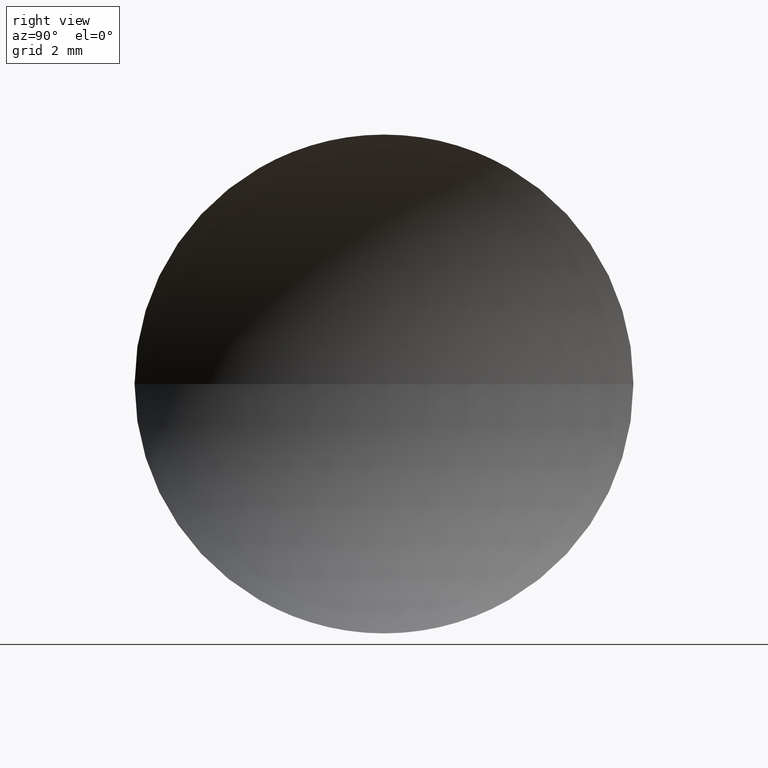
[diagram: clean part render]
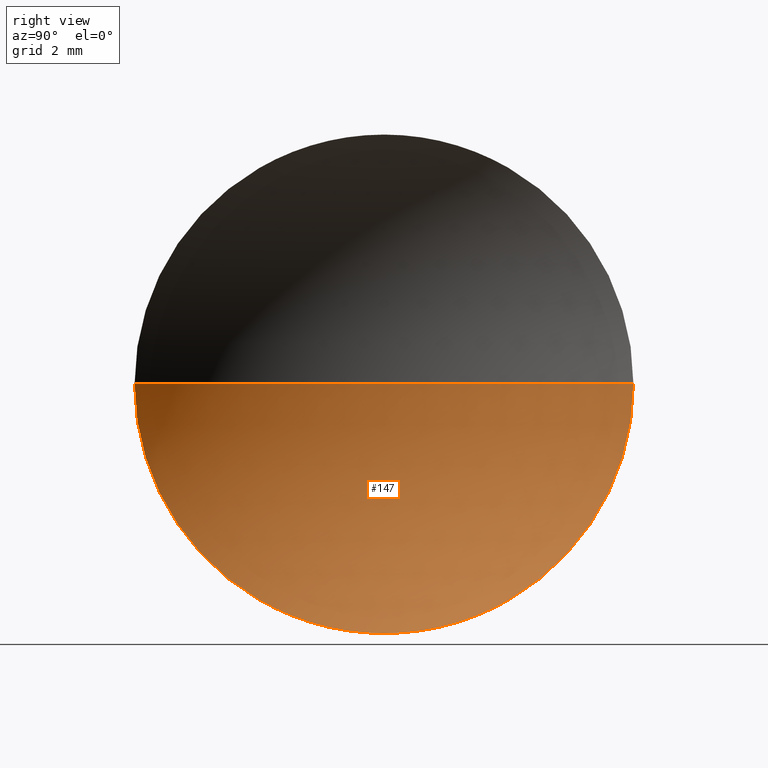
[diagram: same view with one face highlighted and labeled with its STEP entity id]
A machine part, right view. The second image highlights one B-rep face of the part: STEP entity #147.
In plain terms, the highlighted spherical surface has radius 6.46 mm.
Its self-contained STEP definition (entity closure, byte-faithful):
#2 = EDGE_LOOP ( 'NONE', ( #71, #49, #50 ) ) ;
#3 = DIRECTION ( 'NONE',  ( -3.868869157118576300E-032, -1.224646799147353200E-016, 1.000000000000000000 ) ) ;
#5 = DIRECTION ( 'NONE',  ( 0.0000000000000000000, -0.0000000000000000000, -1.000000000000000000 ) ) ;
#8 = CIRCLE ( 'NONE', #165, 6.460000000000000900 ) ;
#9 = CIRCLE ( 'NONE', #74, 5.000000000000002700 ) ;
#10 = EDGE_CURVE ( 'NONE', #105, #77, #127, .T. ) ;
#11 = EDGE_CURVE ( 'NONE', #105, #104, #9, .T. ) ;
#16 = EDGE_CURVE ( 'NONE', #104, #77, #8, .T. ) ;
#27 = DIRECTION ( 'NONE',  ( -1.000000000000000000, 0.0000000000000000000, 0.0000000000000000000 ) ) ;
#36 = CARTESIAN_POINT ( 'NONE',  ( 26.29380420313851700, 18.03112609140304600, 6.123233995736769200E-016 ) ) ;
#48 = SPHERICAL_SURFACE ( 'NONE', #55, 6.460000000000000900 ) ;
#49 = ORIENTED_EDGE ( 'NONE', *, *, #10, .T. ) ;
#50 = ORIENTED_EDGE ( 'NONE', *, *, #16, .F. ) ;
#55 = AXIS2_PLACEMENT_3D ( 'NONE', #155, #111, #100 ) ;
#65 = DIRECTION ( 'NONE',  ( 0.0000000000000000000, -1.000000000000000000, -1.224646799147353200E-016 ) ) ;
#71 = ORIENTED_EDGE ( 'NONE', *, *, #11, .F. ) ;
#74 = AXIS2_PLACEMENT_3D ( 'NONE', #122, #95, #146 ) ;
#77 = VERTEX_POINT ( 'NONE', #137 ) ;
#85 = CARTESIAN_POINT ( 'NONE',  ( 30.38423205362066100, 13.03112609140304000, 0.0000000000000000000 ) ) ;
#86 = FACE_OUTER_BOUND ( 'NONE', #2, .T. ) ;
#95 = DIRECTION ( 'NONE',  ( -1.000000000000000000, 3.159171411554934600E-016, -0.0000000000000000000 ) ) ;
#100 = DIRECTION ( 'NONE',  ( -5.370660916336863500E-016, -1.000000000000000000, 0.0000000000000000000 ) ) ;
#104 = VERTEX_POINT ( 'NONE', #120 ) ;
#105 = VERTEX_POINT ( 'NONE', #36 ) ;
#111 = DIRECTION ( 'NONE',  ( 0.0000000000000000000, 0.0000000000000000000, 1.000000000000000000 ) ) ;
#120 = CARTESIAN_POINT ( 'NONE',  ( 26.29380420313851700, 8.031126091403036700, 0.0000000000000000000 ) ) ;
#122 = CARTESIAN_POINT ( 'NONE',  ( 26.29380420313851700, 13.03112609140304000, 0.0000000000000000000 ) ) ;
#126 = CARTESIAN_POINT ( 'NONE',  ( 30.38423205362066100, 13.03112609140304000, 0.0000000000000000000 ) ) ;
#127 = CIRCLE ( 'NONE', #157, 6.460000000000000900 ) ;
#137 = CARTESIAN_POINT ( 'NONE',  ( 23.92423205362066000, 13.03112609140304200, 0.0000000000000000000 ) ) ;
#146 = DIRECTION ( 'NONE',  ( 0.0000000000000000000, -1.000000000000000000, 0.0000000000000000000 ) ) ;
#147 = ADVANCED_FACE ( 'NONE', ( #86 ), #48, .F. ) ;
#155 = CARTESIAN_POINT ( 'NONE',  ( 30.38423205362066100, 13.03112609140304000, 0.0000000000000000000 ) ) ;
#157 = AXIS2_PLACEMENT_3D ( 'NONE', #126, #3, #65 ) ;
#165 = AXIS2_PLACEMENT_3D ( 'NONE', #85, #5, #27 ) ;